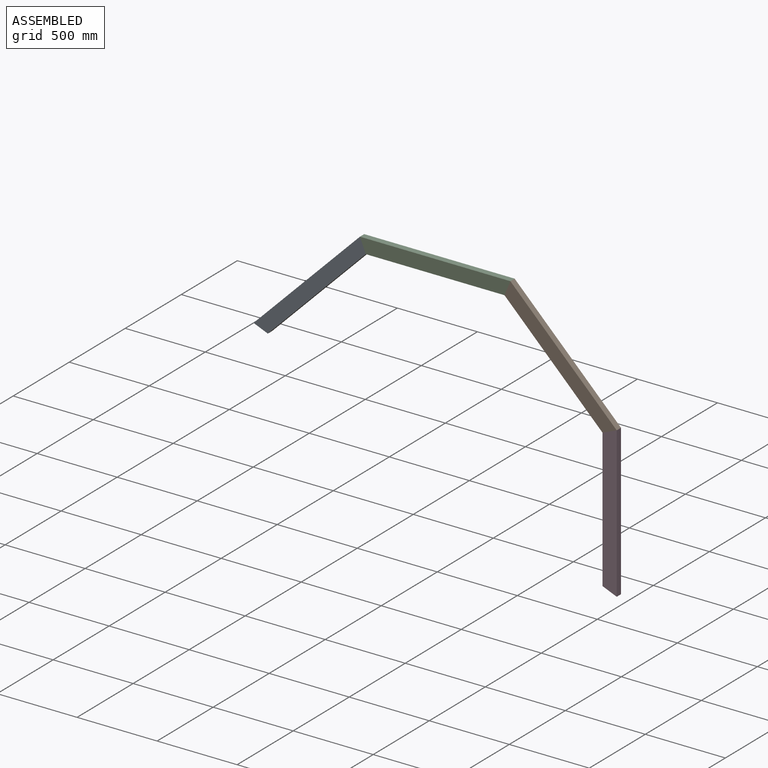
[diagram: assembled view]
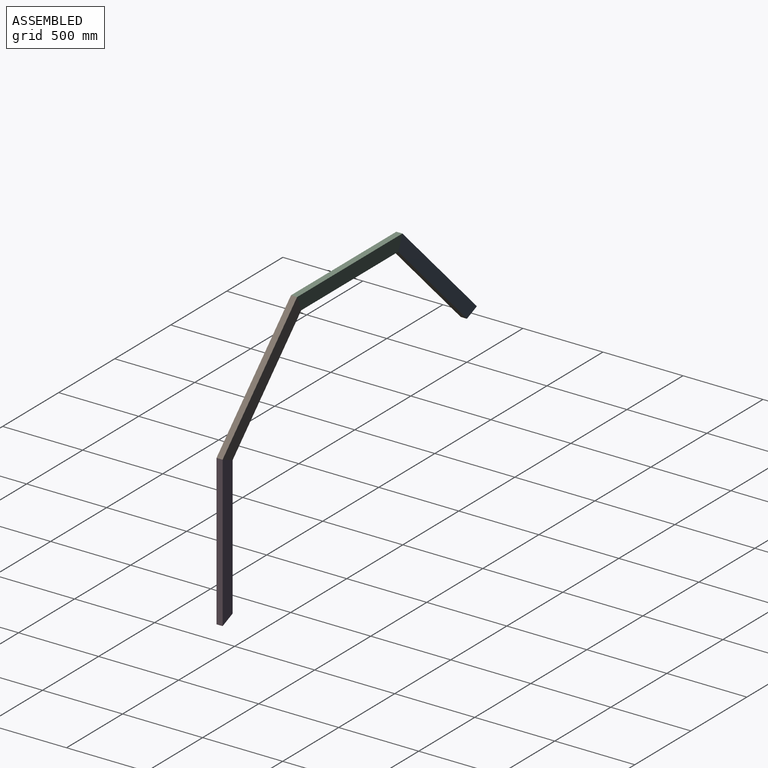
[diagram: assembled view, second angle]
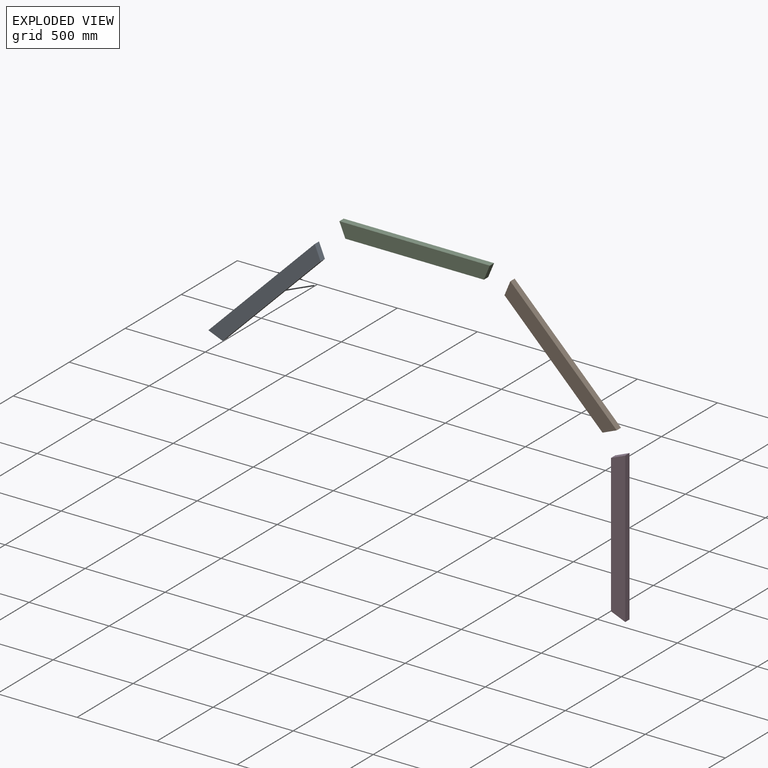
[diagram: exploded view]
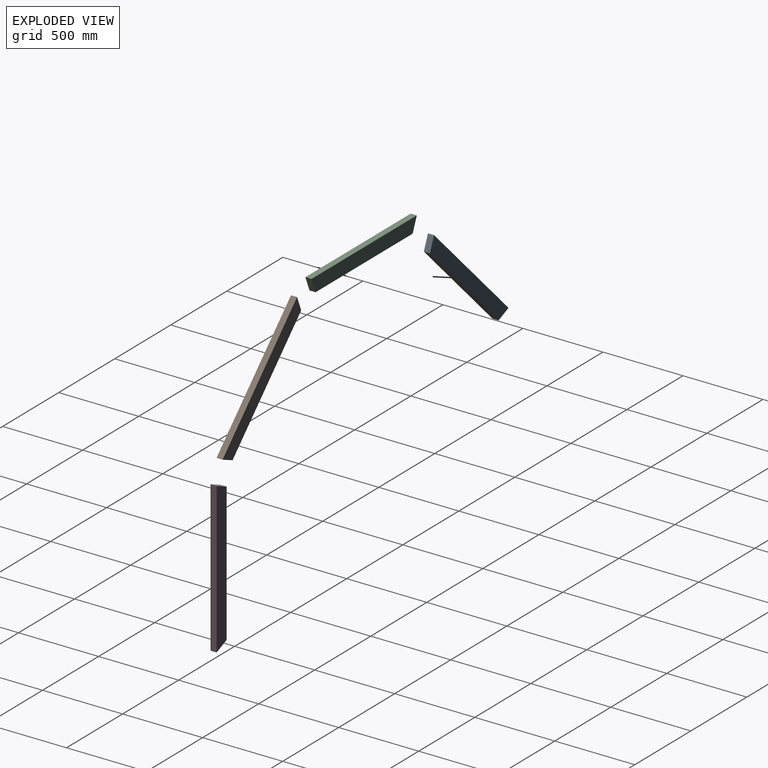
[diagram: exploded view, second angle]
ASSEMBLY  parts=4 mates=3
PART A: 6 faces, bbox 939.8x38.1x88.9 mm
  f0: plane 939.8x38.1mm, normal (0,0,1), area 35806.4mm2, adj f1,f3,f4,f5
  f1: plane 88.9x38.1mm, normal (-0.92,0,-0.38), area 3666.2mm2, adj f0,f2,f4,f5
  f2: plane 866.15x38.1mm, normal (0,0,-1), area 33000.4mm2, adj f1,f3,f4,f5
  f3: plane 88.9x38.1mm, normal (0.92,0,-0.38), area 3666.2mm2, adj f0,f2,f4,f5
  f4: plane 939.8x88.9mm, normal (0,-1,0), area 80274.6mm2, adj f0,f1,f2,f3
  f5: plane 939.8x88.9mm, normal (0,1,0), area 80274.6mm2, adj f0,f1,f2,f3
PART B: same geometry as A
PART C: same geometry as A
PART D: same geometry as A
PLACE A rot(axis=(0,-1,0),45deg) t=(-770.74,0,-319.25)mm
PLACE B rot(axis=(0,1,0),45deg) t=(770.74,0,-319.25)mm
PLACE C at identity
PLACE D rot(axis=(0,1,0),90deg) t=(1089.99,0,-1089.99)mm
MATE fastened B.f1 <-> C.f3  axis (-0.92,0,0.38) through (451.49,0,0)mm
MATE fastened A.f3 <-> C.f1  axis (0.92,0,0.38) through (-451.49,0,0)mm
MATE fastened D.f1 <-> B.f3  axis (-0.38,0,0.92) through (1089.99,0,-638.5)mm
